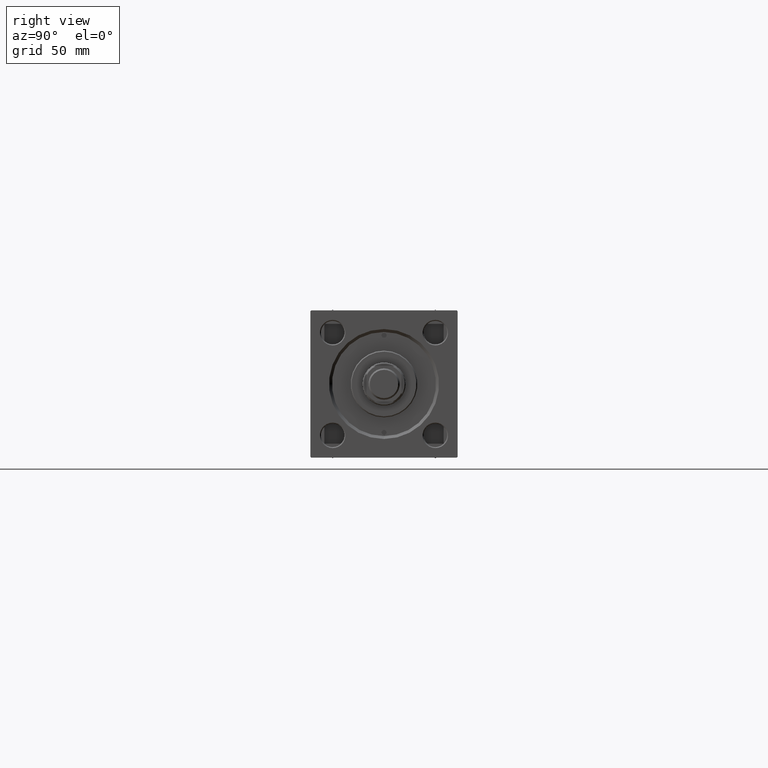
[diagram: clean part render]
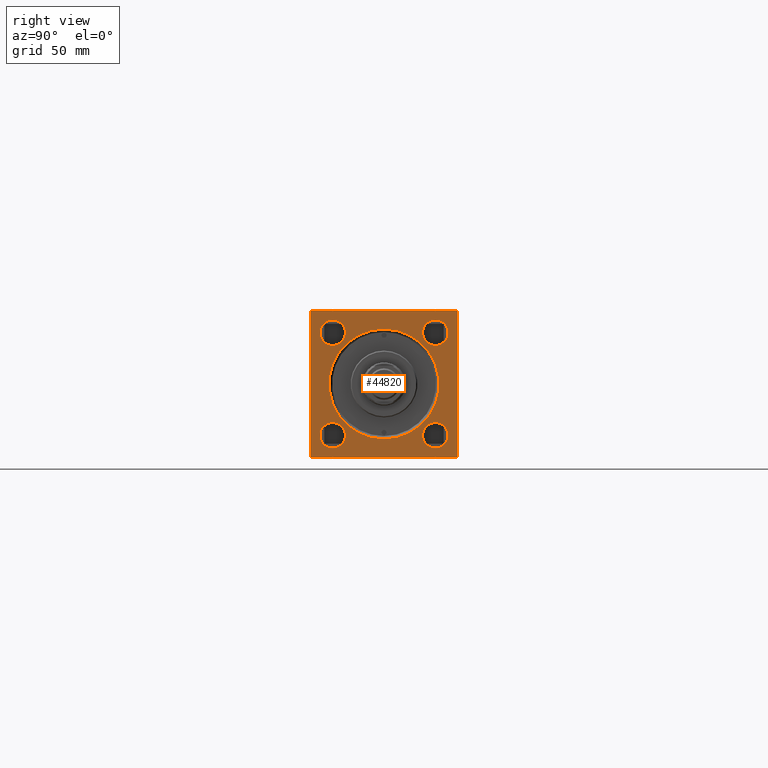
[diagram: same view with one face highlighted and labeled with its STEP entity id]
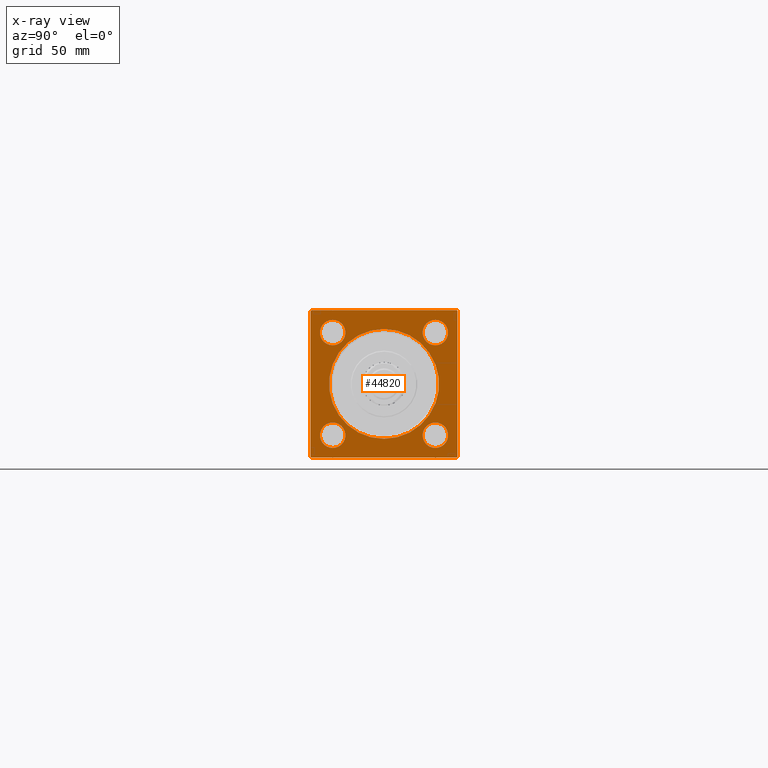
[diagram: x-ray of the same camera — body ghosted, the highlighted face saturated]
A machine part, right view. The second image highlights one B-rep face of the part: STEP entity #44820.
The next image is the same camera in x-ray: the body ghosted, the highlighted face saturated — about 0% of this face is hidden behind the body in this view.
In plain terms, the highlighted planar face has unit normal (-1, 0, 0).
Its self-contained STEP definition (entity closure, byte-faithful):
#18 = ORIENTED_EDGE ( 'NONE', *, *, #14262, .T. ) ;
#561 = EDGE_CURVE ( 'NONE', #38668, #19134, #45936, .T. ) ;
#989 = ORIENTED_EDGE ( 'NONE', *, *, #29800, .T. ) ;
#1755 = CARTESIAN_POINT ( 'NONE',  ( 294.0000000000000568, 26.14999999999999858, -32.65000000000006963 ) ) ;
#2215 = ORIENTED_EDGE ( 'NONE', *, *, #38153, .T. ) ;
#2237 = EDGE_CURVE ( 'NONE', #18573, #37254, #28175, .T. ) ;
#2667 = FACE_BOUND ( 'NONE', #7095, .T. ) ;
#2917 = FACE_BOUND ( 'NONE', #34473, .T. ) ;
#3029 = CARTESIAN_POINT ( 'NONE',  ( 294.0000000000000568, 0.000000000000000000, -28.00000000000010658 ) ) ;
#3751 = ORIENTED_EDGE ( 'NONE', *, *, #39904, .T. ) ;
#4098 = DIRECTION ( 'NONE',  ( 0.000000000000000000, -1.000000000000000000, 0.000000000000000000 ) ) ;
#6281 = CARTESIAN_POINT ( 'NONE',  ( 294.0000000000000568, 3.429011037612602687E-15, 28.00000000000010658 ) ) ;
#6589 = DIRECTION ( 'NONE',  ( 0.000000000000000000, 0.000000000000000000, 1.000000000000000000 ) ) ;
#6734 = AXIS2_PLACEMENT_3D ( 'NONE', #44926, #30284, #25925 ) ;
#6940 = VECTOR ( 'NONE', #4098, 1000.000000000000000 ) ;
#7018 = VERTEX_POINT ( 'NONE', #12606 ) ;
#7077 = DIRECTION ( 'NONE',  ( -1.000000000000000000, -0.000000000000000000, 0.000000000000000000 ) ) ;
#7095 = EDGE_LOOP ( 'NONE', ( #989, #18 ) ) ;
#7184 = EDGE_CURVE ( 'NONE', #30318, #14238, #46849, .T. ) ;
#7403 = CARTESIAN_POINT ( 'NONE',  ( 294.0000000000000568, -26.14999999999999147, 32.65000000000005542 ) ) ;
#7637 = EDGE_CURVE ( 'NONE', #27667, #18624, #23071, .T. ) ;
#7801 = VECTOR ( 'NONE', #27990, 1000.000000000000114 ) ;
#8139 = LINE ( 'NONE', #31524, #23174 ) ;
#9061 = DIRECTION ( 'NONE',  ( 0.000000000000000000, 0.000000000000000000, 1.000000000000000000 ) ) ;
#9143 = CARTESIAN_POINT ( 'NONE',  ( 294.0000000000000568, 26.14999999999999858, -26.15000000000000213 ) ) ;
#9502 = DIRECTION ( 'NONE',  ( 0.000000000000000000, 0.000000000000000000, 1.000000000000000000 ) ) ;
#9765 = CARTESIAN_POINT ( 'NONE',  ( 294.0000000000000568, -37.50000000000000000, 36.99999999999992184 ) ) ;
#9789 = CIRCLE ( 'NONE', #22084, 6.500000000000064837 ) ;
#9846 = EDGE_CURVE ( 'NONE', #14238, #30318, #23139, .T. ) ;
#10457 = ORIENTED_EDGE ( 'NONE', *, *, #50366, .T. ) ;
#10528 = VERTEX_POINT ( 'NONE', #45246 ) ;
#10933 = CARTESIAN_POINT ( 'NONE',  ( 294.0000000000000568, 0.000000000000000000, 0.000000000000000000 ) ) ;
#10992 = EDGE_CURVE ( 'NONE', #18239, #37254, #8139, .T. ) ;
#11739 = DIRECTION ( 'NONE',  ( -0.000000000000000000, 0.7071067811865230368, 0.7071067811865721087 ) ) ;
#12085 = DIRECTION ( 'NONE',  ( 0.000000000000000000, 0.000000000000000000, 1.000000000000000000 ) ) ;
#12606 = CARTESIAN_POINT ( 'NONE',  ( 294.0000000000000568, -37.50000000000000711, -36.99999999999995026 ) ) ;
#12882 = AXIS2_PLACEMENT_3D ( 'NONE', #17563, #22433, #13709 ) ;
#13062 = CIRCLE ( 'NONE', #38497, 6.500000000000064837 ) ;
#13365 = DIRECTION ( 'NONE',  ( -0.000000000000000000, -0.7071067811865474617, -0.7071067811865474617 ) ) ;
#13709 = DIRECTION ( 'NONE',  ( 0.000000000000000000, 0.000000000000000000, 1.000000000000000000 ) ) ;
#14238 = VERTEX_POINT ( 'NONE', #36792 ) ;
#14262 = EDGE_CURVE ( 'NONE', #45666, #22850, #47880, .T. ) ;
#14429 = CARTESIAN_POINT ( 'NONE',  ( 294.0000000000000568, 26.14999999999999858, 32.65000000000006963 ) ) ;
#15029 = CARTESIAN_POINT ( 'NONE',  ( 294.0000000000000568, 37.50000000000000000, 37.49999999999999289 ) ) ;
#15052 = CARTESIAN_POINT ( 'NONE',  ( 294.0000000000000568, 37.50000000000000000, 36.99999999999999289 ) ) ;
#15143 = ORIENTED_EDGE ( 'NONE', *, *, #9846, .T. ) ;
#15381 = CARTESIAN_POINT ( 'NONE',  ( 294.0000000000000568, -36.99999999999995737, -37.50000000000000000 ) ) ;
#15511 = CARTESIAN_POINT ( 'NONE',  ( 294.0000000000000568, 0.000000000000000000, 0.000000000000000000 ) ) ;
#15536 = DIRECTION ( 'NONE',  ( 0.000000000000000000, -1.000000000000000000, -1.850371707708594316E-16 ) ) ;
#15556 = DIRECTION ( 'NONE',  ( 0.000000000000000000, 0.000000000000000000, 1.000000000000000000 ) ) ;
#15571 = VERTEX_POINT ( 'NONE', #15381 ) ;
#15937 = CARTESIAN_POINT ( 'NONE',  ( 294.0000000000000568, 26.14999999999999858, 26.15000000000000213 ) ) ;
#16050 = LINE ( 'NONE', #15029, #24371 ) ;
#16071 = CARTESIAN_POINT ( 'NONE',  ( 294.0000000000000568, 26.14999999999999858, 26.15000000000000213 ) ) ;
#16366 = EDGE_CURVE ( 'NONE', #18239, #15571, #31089, .T. ) ;
#16422 = DIRECTION ( 'NONE',  ( 0.000000000000000000, 0.000000000000000000, 1.000000000000000000 ) ) ;
#16452 = DIRECTION ( 'NONE',  ( -1.000000000000000000, -0.000000000000000000, 0.000000000000000000 ) ) ;
#16765 = DIRECTION ( 'NONE',  ( -1.000000000000000000, -0.000000000000000000, 0.000000000000000000 ) ) ;
#16843 = DIRECTION ( 'NONE',  ( -1.000000000000000000, -0.000000000000000000, 0.000000000000000000 ) ) ;
#17222 = LINE ( 'NONE', #9765, #37702 ) ;
#17563 = CARTESIAN_POINT ( 'NONE',  ( 294.0000000000000568, 26.14999999999999858, -26.15000000000000213 ) ) ;
#17670 = CIRCLE ( 'NONE', #20942, 28.00000000000010658 ) ;
#17777 = CARTESIAN_POINT ( 'NONE',  ( 294.0000000000000568, 37.00000000000000000, -37.50000000000000000 ) ) ;
#17845 = EDGE_CURVE ( 'NONE', #18624, #27667, #17670, .T. ) ;
#18239 = VERTEX_POINT ( 'NONE', #17777 ) ;
#18573 = VERTEX_POINT ( 'NONE', #15052 ) ;
#18617 = FACE_BOUND ( 'NONE', #28279, .T. ) ;
#18624 = VERTEX_POINT ( 'NONE', #6281 ) ;
#19009 = LINE ( 'NONE', #46482, #7801 ) ;
#19134 = VERTEX_POINT ( 'NONE', #1755 ) ;
#19162 = DIRECTION ( 'NONE',  ( -1.000000000000000000, -0.000000000000000000, 0.000000000000000000 ) ) ;
#19258 = ORIENTED_EDGE ( 'NONE', *, *, #17845, .T. ) ;
#19828 = ORIENTED_EDGE ( 'NONE', *, *, #2237, .F. ) ;
#20473 = CARTESIAN_POINT ( 'NONE',  ( 294.0000000000000568, 37.50000000000000000, 37.49999999999999289 ) ) ;
#20942 = AXIS2_PLACEMENT_3D ( 'NONE', #10933, #19162, #15556 ) ;
#21029 = VECTOR ( 'NONE', #25612, 1000.000000000000000 ) ;
#22084 = AXIS2_PLACEMENT_3D ( 'NONE', #16071, #7077, #35072 ) ;
#22433 = DIRECTION ( 'NONE',  ( -1.000000000000000000, -0.000000000000000000, 0.000000000000000000 ) ) ;
#22631 = ORIENTED_EDGE ( 'NONE', *, *, #7637, .T. ) ;
#22850 = VERTEX_POINT ( 'NONE', #44660 ) ;
#23071 = CIRCLE ( 'NONE', #41123, 28.00000000000010658 ) ;
#23139 = CIRCLE ( 'NONE', #6734, 6.500000000000057732 ) ;
#23174 = VECTOR ( 'NONE', #11739, 1000.000000000000000 ) ;
#23488 = CARTESIAN_POINT ( 'NONE',  ( 294.0000000000000568, 26.14999999999999858, 19.64999999999993818 ) ) ;
#23680 = CIRCLE ( 'NONE', #30251, 6.500000000000057732 ) ;
#24081 = ORIENTED_EDGE ( 'NONE', *, *, #35963, .T. ) ;
#24371 = VECTOR ( 'NONE', #15536, 1000.000000000000000 ) ;
#24487 = CARTESIAN_POINT ( 'NONE',  ( 294.0000000000000568, -26.15000000000000213, -26.15000000000000213 ) ) ;
#25070 = DIRECTION ( 'NONE',  ( 0.000000000000000000, 0.000000000000000000, 1.000000000000000000 ) ) ;
#25434 = CARTESIAN_POINT ( 'NONE',  ( 294.0000000000000568, -26.14999999999999147, 26.14999999999999503 ) ) ;
#25612 = DIRECTION ( 'NONE',  ( 0.000000000000000000, -0.7071067811865672237, 0.7071067811865279218 ) ) ;
#25925 = DIRECTION ( 'NONE',  ( 0.000000000000000000, 0.000000000000000000, 1.000000000000000000 ) ) ;
#27457 = EDGE_LOOP ( 'NONE', ( #28627, #30977 ) ) ;
#27661 = CIRCLE ( 'NONE', #12882, 6.500000000000057732 ) ;
#27667 = VERTEX_POINT ( 'NONE', #3029 ) ;
#27990 = DIRECTION ( 'NONE',  ( 0.000000000000000000, 0.7071067811865474617, -0.7071067811865474617 ) ) ;
#28175 = LINE ( 'NONE', #20473, #49227 ) ;
#28279 = EDGE_LOOP ( 'NONE', ( #22631, #19258 ) ) ;
#28336 = ORIENTED_EDGE ( 'NONE', *, *, #39602, .T. ) ;
#28627 = ORIENTED_EDGE ( 'NONE', *, *, #48357, .T. ) ;
#29800 = EDGE_CURVE ( 'NONE', #22850, #45666, #23680, .T. ) ;
#29931 = FACE_BOUND ( 'NONE', #27457, .T. ) ;
#30251 = AXIS2_PLACEMENT_3D ( 'NONE', #47239, #48254, #16422 ) ;
#30284 = DIRECTION ( 'NONE',  ( -1.000000000000000000, -0.000000000000000000, 0.000000000000000000 ) ) ;
#30318 = VERTEX_POINT ( 'NONE', #7403 ) ;
#30326 = LINE ( 'NONE', #35627, #37444 ) ;
#30584 = CARTESIAN_POINT ( 'NONE',  ( 294.0000000000000568, 37.50000000000000000, -37.50000000000000000 ) ) ;
#30977 = ORIENTED_EDGE ( 'NONE', *, *, #48573, .T. ) ;
#31089 = LINE ( 'NONE', #30584, #6940 ) ;
#31158 = AXIS2_PLACEMENT_3D ( 'NONE', #9143, #16843, #25070 ) ;
#31443 = PLANE ( 'NONE',  #39976 ) ;
#31524 = CARTESIAN_POINT ( 'NONE',  ( 294.0000000000000568, 37.50000000000000000, -36.99999999999996447 ) ) ;
#32739 = VERTEX_POINT ( 'NONE', #23488 ) ;
#33562 = LINE ( 'NONE', #38423, #21029 ) ;
#34104 = EDGE_LOOP ( 'NONE', ( #28336, #24081, #43054, #40541, #19828, #2215, #3751, #10457 ) ) ;
#34283 = FACE_OUTER_BOUND ( 'NONE', #34104, .T. ) ;
#34473 = EDGE_LOOP ( 'NONE', ( #40598, #38979 ) ) ;
#35072 = DIRECTION ( 'NONE',  ( 0.000000000000000000, 0.000000000000000000, 1.000000000000000000 ) ) ;
#35099 = CARTESIAN_POINT ( 'NONE',  ( 294.0000000000000568, 36.99999999999997158, 37.49999999999999289 ) ) ;
#35627 = CARTESIAN_POINT ( 'NONE',  ( 294.0000000000000568, -37.50000000000000000, 37.49999999999997868 ) ) ;
#35963 = EDGE_CURVE ( 'NONE', #7018, #15571, #19009, .T. ) ;
#35969 = ORIENTED_EDGE ( 'NONE', *, *, #7184, .T. ) ;
#36792 = CARTESIAN_POINT ( 'NONE',  ( 294.0000000000000568, -26.14999999999999147, 19.64999999999993818 ) ) ;
#37254 = VERTEX_POINT ( 'NONE', #44852 ) ;
#37444 = VECTOR ( 'NONE', #39483, 1000.000000000000000 ) ;
#37702 = VECTOR ( 'NONE', #13365, 1000.000000000000114 ) ;
#38153 = EDGE_CURVE ( 'NONE', #18573, #45282, #33562, .T. ) ;
#38423 = CARTESIAN_POINT ( 'NONE',  ( 294.0000000000000568, 36.99999999999997158, 37.49999999999999289 ) ) ;
#38497 = AXIS2_PLACEMENT_3D ( 'NONE', #15937, #16452, #12085 ) ;
#38668 = VERTEX_POINT ( 'NONE', #46924 ) ;
#38851 = AXIS2_PLACEMENT_3D ( 'NONE', #24487, #16765, #9061 ) ;
#38884 = DIRECTION ( 'NONE',  ( -1.000000000000000000, -0.000000000000000000, 0.000000000000000000 ) ) ;
#38979 = ORIENTED_EDGE ( 'NONE', *, *, #561, .T. ) ;
#39405 = CARTESIAN_POINT ( 'NONE',  ( 294.0000000000000568, -26.15000000000000213, -19.64999999999994174 ) ) ;
#39483 = DIRECTION ( 'NONE',  ( 0.000000000000000000, -9.251858538542972814E-17, -1.000000000000000000 ) ) ;
#39602 = EDGE_CURVE ( 'NONE', #47030, #7018, #30326, .T. ) ;
#39651 = DIRECTION ( 'NONE',  ( 0.000000000000000000, 0.000000000000000000, 1.000000000000000000 ) ) ;
#39904 = EDGE_CURVE ( 'NONE', #45282, #10528, #16050, .T. ) ;
#39976 = AXIS2_PLACEMENT_3D ( 'NONE', #15511, #38884, #39651 ) ;
#40077 = EDGE_CURVE ( 'NONE', #19134, #38668, #27661, .T. ) ;
#40541 = ORIENTED_EDGE ( 'NONE', *, *, #10992, .T. ) ;
#40598 = ORIENTED_EDGE ( 'NONE', *, *, #40077, .T. ) ;
#41123 = AXIS2_PLACEMENT_3D ( 'NONE', #50234, #46385, #6589 ) ;
#41748 = FACE_BOUND ( 'NONE', #48745, .T. ) ;
#43054 = ORIENTED_EDGE ( 'NONE', *, *, #16366, .F. ) ;
#44660 = CARTESIAN_POINT ( 'NONE',  ( 294.0000000000000568, -26.15000000000000213, -32.65000000000006963 ) ) ;
#44820 = ADVANCED_FACE ( 'NONE', ( #29931, #41748, #2667, #2917, #18617, #34283 ), #31443, .F. ) ;
#44852 = CARTESIAN_POINT ( 'NONE',  ( 294.0000000000000568, 37.50000000000000000, -36.99999999999996447 ) ) ;
#44926 = CARTESIAN_POINT ( 'NONE',  ( 294.0000000000000568, -26.14999999999999147, 26.14999999999999503 ) ) ;
#44939 = DIRECTION ( 'NONE',  ( -1.000000000000000000, -0.000000000000000000, 0.000000000000000000 ) ) ;
#45246 = CARTESIAN_POINT ( 'NONE',  ( 294.0000000000000568, -36.99999999999994316, 37.49999999999997868 ) ) ;
#45282 = VERTEX_POINT ( 'NONE', #35099 ) ;
#45666 = VERTEX_POINT ( 'NONE', #39405 ) ;
#45936 = CIRCLE ( 'NONE', #31158, 6.500000000000057732 ) ;
#46385 = DIRECTION ( 'NONE',  ( -1.000000000000000000, -0.000000000000000000, 0.000000000000000000 ) ) ;
#46482 = CARTESIAN_POINT ( 'NONE',  ( 294.0000000000000568, -36.99999999999995737, -37.50000000000000000 ) ) ;
#46849 = CIRCLE ( 'NONE', #49316, 6.500000000000057732 ) ;
#46924 = CARTESIAN_POINT ( 'NONE',  ( 294.0000000000000568, 26.14999999999999858, -19.64999999999994174 ) ) ;
#46972 = CARTESIAN_POINT ( 'NONE',  ( 294.0000000000000568, -37.50000000000000000, 36.99999999999992184 ) ) ;
#47030 = VERTEX_POINT ( 'NONE', #46972 ) ;
#47239 = CARTESIAN_POINT ( 'NONE',  ( 294.0000000000000568, -26.15000000000000213, -26.15000000000000213 ) ) ;
#47437 = DIRECTION ( 'NONE',  ( 0.000000000000000000, 0.000000000000000000, -1.000000000000000000 ) ) ;
#47880 = CIRCLE ( 'NONE', #38851, 6.500000000000057732 ) ;
#48254 = DIRECTION ( 'NONE',  ( -1.000000000000000000, -0.000000000000000000, 0.000000000000000000 ) ) ;
#48357 = EDGE_CURVE ( 'NONE', #32739, #49806, #13062, .T. ) ;
#48573 = EDGE_CURVE ( 'NONE', #49806, #32739, #9789, .T. ) ;
#48745 = EDGE_LOOP ( 'NONE', ( #15143, #35969 ) ) ;
#49227 = VECTOR ( 'NONE', #47437, 1000.000000000000000 ) ;
#49316 = AXIS2_PLACEMENT_3D ( 'NONE', #25434, #44939, #9502 ) ;
#49806 = VERTEX_POINT ( 'NONE', #14429 ) ;
#50234 = CARTESIAN_POINT ( 'NONE',  ( 294.0000000000000568, 0.000000000000000000, 0.000000000000000000 ) ) ;
#50366 = EDGE_CURVE ( 'NONE', #10528, #47030, #17222, .T. ) ;